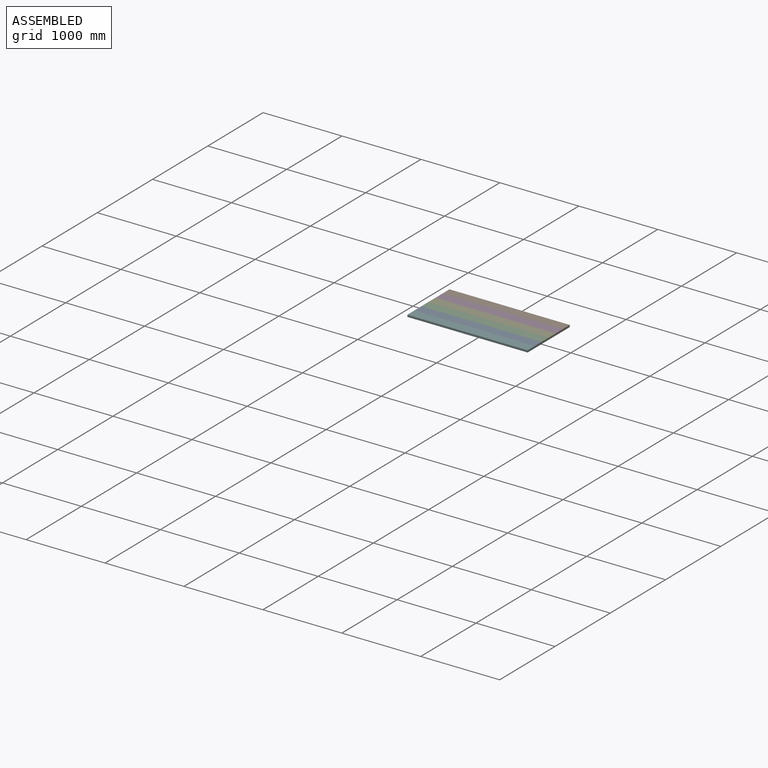
[diagram: assembled view]
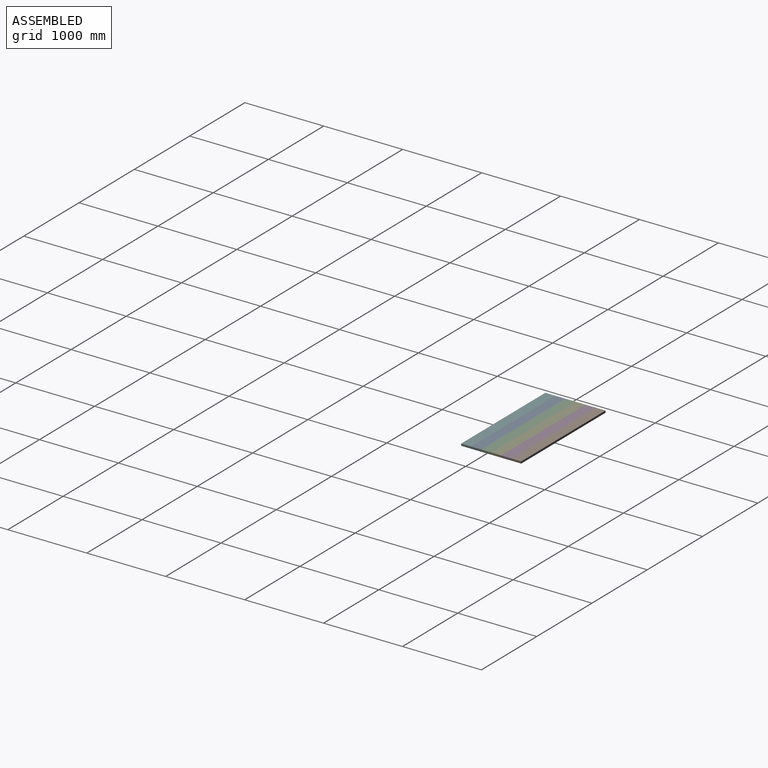
[diagram: assembled view, second angle]
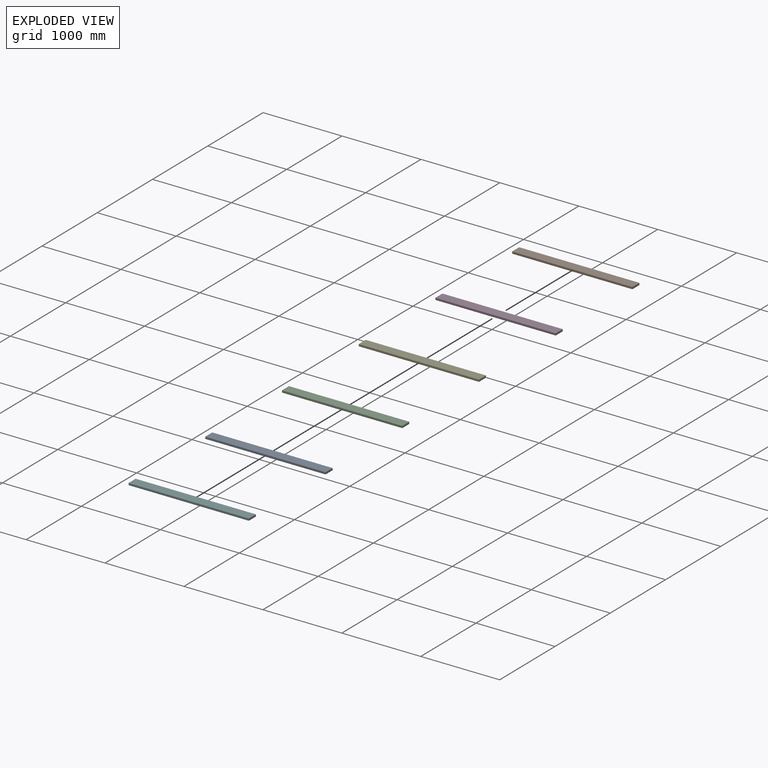
[diagram: exploded view]
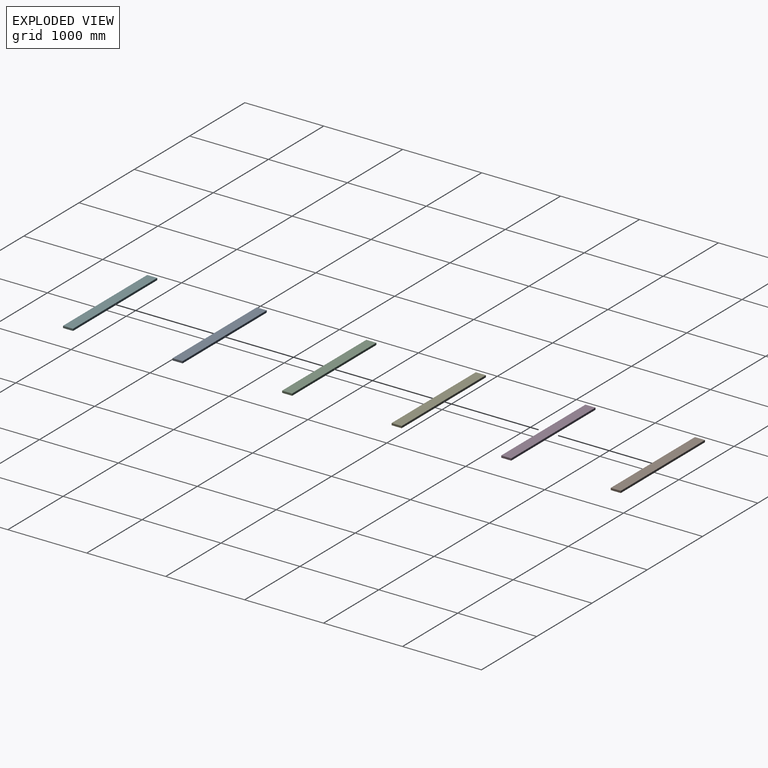
[diagram: exploded view, second angle]
ASSEMBLY  parts=6 mates=5
PART A: 6 faces, bbox 1524x127x25.4 mm
  f0: plane 1523.99x25.4mm, normal (0,1,0), area 38709.4mm2, adj f2,f3,f4,f5
  f1: plane 1523.99x25.4mm, normal (0,-1,0), area 38709.4mm2, adj f2,f3,f4,f5
  f2: plane 126.97x25.4mm, normal (1,0,0), area 3225.1mm2, adj f0,f1,f3,f4
  f3: plane 1523.99x126.97mm, normal (0,0,1), area 193507mm2, adj f0,f1,f2,f5
  f4: plane 1523.99x126.97mm, normal (0,0,-1), area 193507mm2, adj f0,f1,f2,f5
  f5: plane 126.97x25.4mm, normal (-1,0,0), area 3225.1mm2, adj f0,f1,f3,f4
PART B: same geometry as A
PART C: same geometry as A
PART D: same geometry as A
PART E: same geometry as A
PART F: same geometry as A
PLACE A t=(-392.88,-98.02,-12.7)mm
PLACE B t=(-392.88,409.88,-12.7)mm
PLACE C t=(-392.88,28.96,-12.7)mm
PLACE D t=(-392.88,282.91,-12.7)mm
PLACE E t=(-392.88,155.93,-12.7)mm
PLACE F t=(-392.88,-224.99,-12.7)mm
MATE fastened A.f1 <-> F.f0  axis (0,-1,0) through (-101.99,-168.98,0)mm
MATE fastened E.f0 <-> D.f1  axis (0,1,0) through (-101.99,211.94,0)mm
MATE fastened C.f0 <-> E.f1  axis (0,1,0) through (-101.99,84.96,0)mm
MATE fastened A.f0 <-> C.f1  axis (0,1,0) through (-101.99,-42.01,0)mm
MATE fastened D.f0 <-> B.f1  axis (0,1,0) through (-101.99,338.91,0)mm
